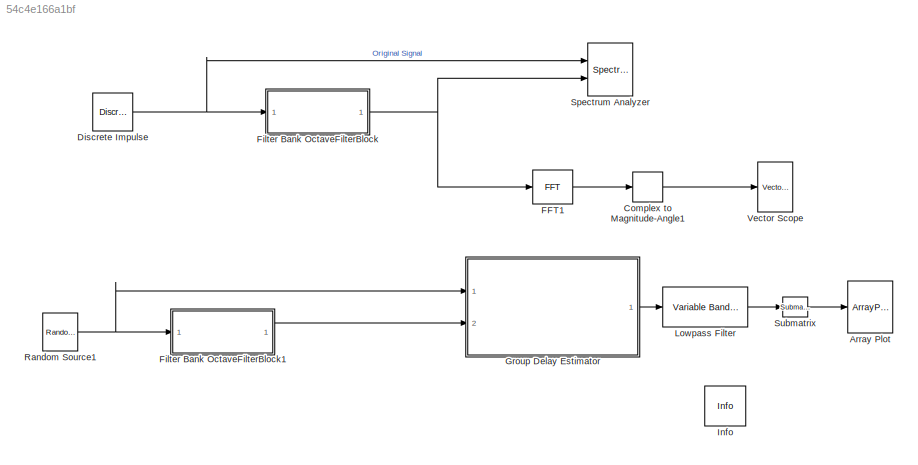
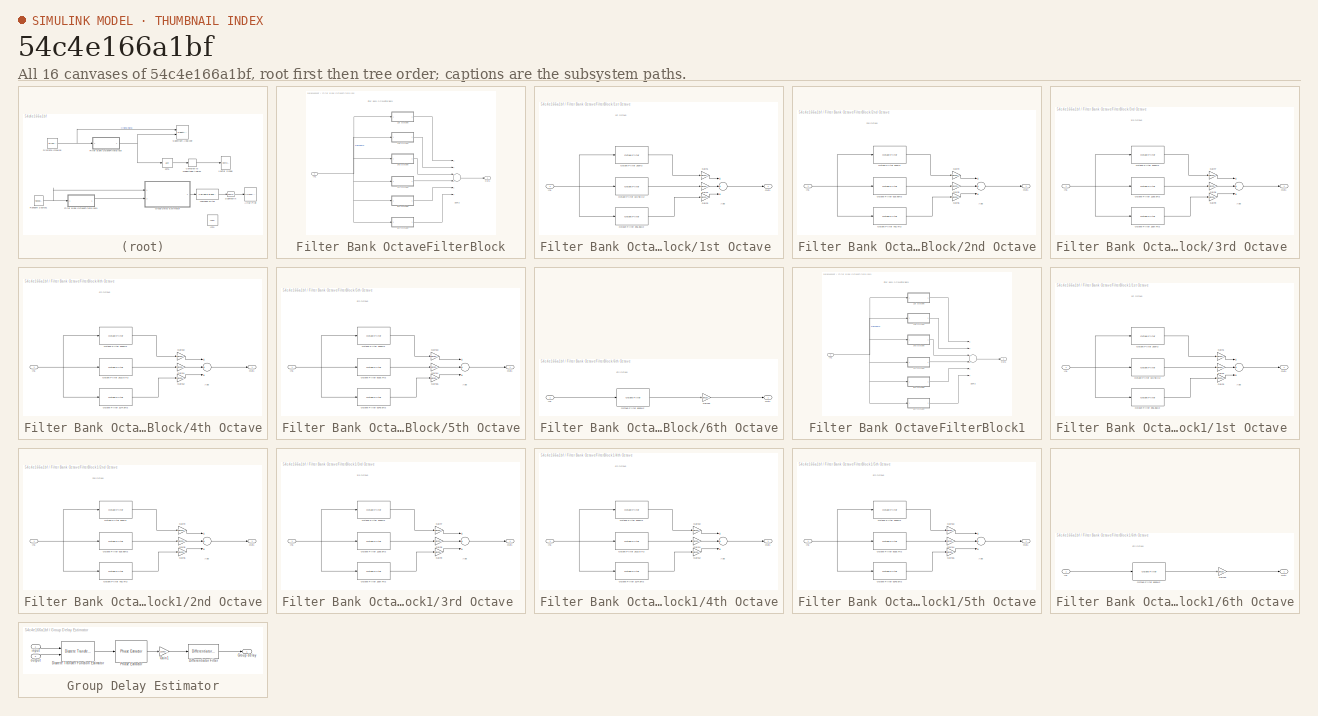
[diagram: thumbnail index - all 16 canvases of the model, root first then tree order]
MODEL slx_54c4e166a1bf
KIND model
CONFIG AbsTol = auto
CONFIG EnableMultiTasking = off
CONFIG FixedStep = auto
CONFIG MaxStep = auto
CONFIG MinStep = auto
CONFIG RelTol = 1e-3
CONFIG SampleTimeConstraint = Unconstrained
CONFIG Solver = FixedStepDiscrete
CONFIG SolverName = FixedStepDiscrete
CONFIG StartTime = 0.0
CONFIG StopTime = 0.5
BLOCK [ArrayPlot] Array Plot
  Ports = [1]
  ScopeSpecificationString = dsp.scopes.ArrayPlotBlockSpecification('CurrentConfiguration', extmgr.ConfigurationSet(extmgr.Configuration('Core','General UI',true),extmgr.Configuration('Core','Source UI',true),extmgr.Configuration('Sources','WiredSimulink',true),extmgr.Configuration('Sources','File',false),extmgr.Configuration('Sources','SPTool',false),extmgr.Configuration('Sources','SimulinkEvent',false),extmgr.Configuration(...<+3064ch>
BLOCK [ComplexToMagnitudeAngle] Complex to Magnitude-Angle1
  Output = Magnitude
  Ports = [1, 1]
BLOCK [Reference] Discrete Impulse  REF=dspsrcs4/Discrete 
Impulse
  Ports = [0, 1]
  SourceBlock = dspsrcs4/Discrete \nImpulse
  SourceProductBaseCode = DS
  SourceProductName = DSP System Toolbox
  SourceType = Discrete Impulse
BLOCK [Reference] FFT1  REF=dspxfrm3/FFT
  Ports = [1, 1]
  SourceBlock = dspxfrm3/FFT
  SourceProductBaseCode = DS
  SourceProductName = DSP System Toolbox
  SourceType = FFT
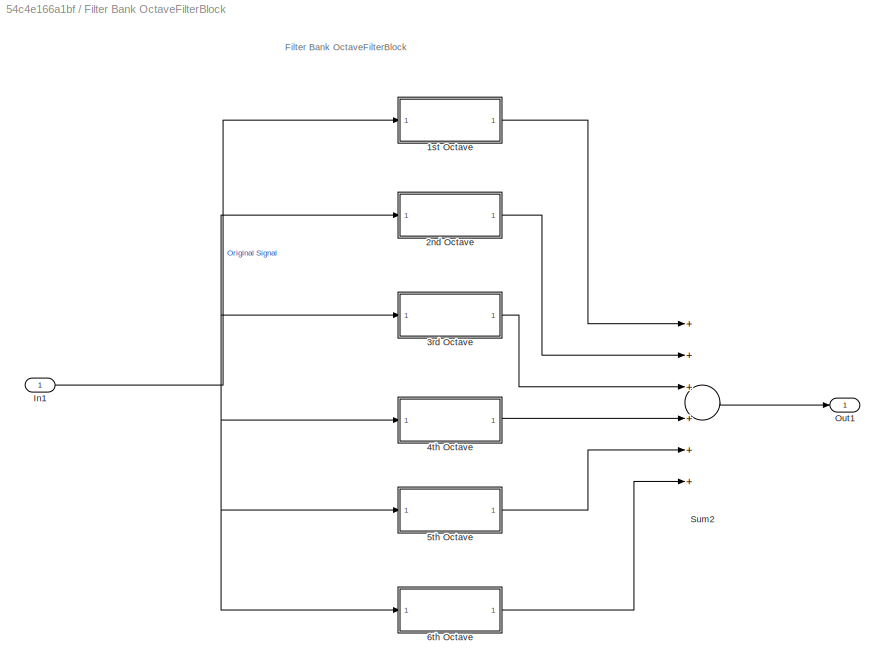
BLOCK [SubSystem] Filter Bank OctaveFilterBlock
  Ports = [1, 1]
  RequestExecContextInheritance = off
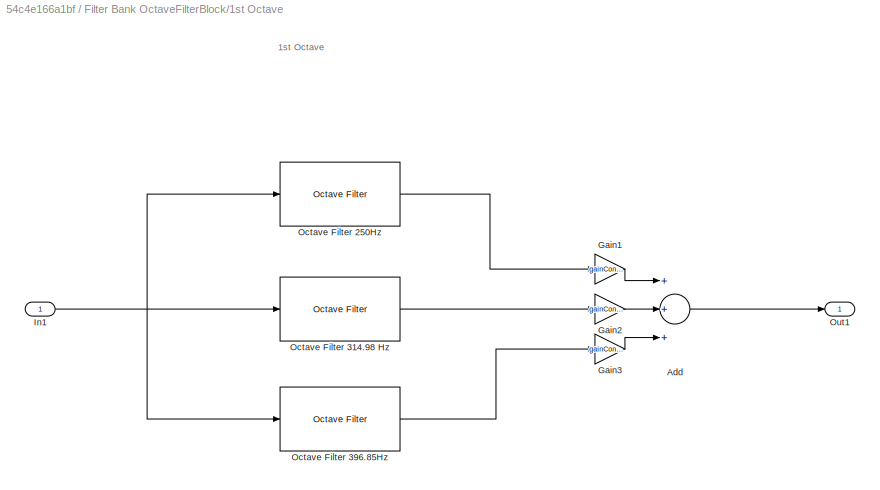
BLOCK [SubSystem] Filter Bank OctaveFilterBlock/1st Octave 
  Ports = [1, 1]
  RequestExecContextInheritance = off
BLOCK [Sum] Filter Bank OctaveFilterBlock/1st Octave /Add
  InputSameDT = off
  Inputs = +++
  OutDataTypeStr = Inherit: Inherit via internal rule
  Ports = [3, 1]
  SaturateOnIntegerOverflow = off
BLOCK [Gain] Filter Bank OctaveFilterBlock/1st Octave /Gain1
  Gain = gainConsts(1)
  OutDataTypeStr = Inherit: Inherit via internal rule
  ParamDataTypeStr = Inherit: Inherit via internal rule
  SaturateOnIntegerOverflow = off
BLOCK [Gain] Filter Bank OctaveFilterBlock/1st Octave /Gain2
  Gain = gainConsts(2)
  OutDataTypeStr = Inherit: Inherit via internal rule
  ParamDataTypeStr = Inherit: Inherit via internal rule
  SaturateOnIntegerOverflow = off
BLOCK [Gain] Filter Bank OctaveFilterBlock/1st Octave /Gain3
  Gain = gainConsts(3)
  OutDataTypeStr = Inherit: Inherit via internal rule
  ParamDataTypeStr = Inherit: Inherit via internal rule
  SaturateOnIntegerOverflow = off
BLOCK [Inport] Filter Bank OctaveFilterBlock/1st Octave /In1
  IconDisplay = Port number
BLOCK [Reference] Filter Bank OctaveFilterBlock/1st Octave /Octave Filter 250Hz   REF=audiofilters/Octave Filter
  Ports = [1, 1]
  SourceBlock = audiofilters/Octave Filter
  SourceProductBaseCode = AU
  SourceProductName = Audio System Toolbox
  SourceType = audio.simulink.OctaveFilter
BLOCK [Reference] Filter Bank OctaveFilterBlock/1st Octave /Octave Filter 314.98 Hz   REF=audiofilters/Octave Filter
  Ports = [1, 1]
  SourceBlock = audiofilters/Octave Filter
  SourceProductBaseCode = AU
  SourceProductName = Audio System Toolbox
  SourceType = audio.simulink.OctaveFilter
BLOCK [Reference] Filter Bank OctaveFilterBlock/1st Octave /Octave Filter 396.85Hz   REF=audiofilters/Octave Filter
  Ports = [1, 1]
  SourceBlock = audiofilters/Octave Filter
  SourceProductBaseCode = AU
  SourceProductName = Audio System Toolbox
  SourceType = audio.simulink.OctaveFilter
BLOCK [Outport] Filter Bank OctaveFilterBlock/1st Octave /Out1
  IconDisplay = Port number
BLOCK [SubSystem] Filter Bank OctaveFilterBlock/2nd Octave
  Ports = [1, 1]
  RequestExecContextInheritance = off
BLOCK [Sum] Filter Bank OctaveFilterBlock/2nd Octave/Add
  InputSameDT = off
  Inputs = +++
  OutDataTypeStr = Inherit: Inherit via internal rule
  Ports = [3, 1]
  SaturateOnIntegerOverflow = off
BLOCK [Gain] Filter Bank OctaveFilterBlock/2nd Octave/Gain4
  Gain = gainConsts(4)
  OutDataTypeStr = Inherit: Inherit via internal rule
  ParamDataTypeStr = Inherit: Inherit via internal rule
  SaturateOnIntegerOverflow = off
BLOCK [Gain] Filter Bank OctaveFilterBlock/2nd Octave/Gain5
  Gain = gainConsts(5)
  OutDataTypeStr = Inherit: Inherit via internal rule
  ParamDataTypeStr = Inherit: Inherit via internal rule
  SaturateOnIntegerOverflow = off
BLOCK [Gain] Filter Bank OctaveFilterBlock/2nd Octave/Gain6
  Gain = gainConsts(6)
  OutDataTypeStr = Inherit: Inherit via internal rule
  ParamDataTypeStr = Inherit: Inherit via internal rule
  SaturateOnIntegerOverflow = off
BLOCK [Inport] Filter Bank OctaveFilterBlock/2nd Octave/In1
  IconDisplay = Port number
BLOCK [Reference] Filter Bank OctaveFilterBlock/2nd Octave/Octave Filter 500Hz   REF=audiofilters/Octave Filter
  Ports = [1, 1]
  SourceBlock = audiofilters/Octave Filter
  SourceProductBaseCode = AU
  SourceProductName = Audio System Toolbox
  SourceType = audio.simulink.OctaveFilter
BLOCK [Reference] Filter Bank OctaveFilterBlock/2nd Octave/Octave Filter 629.96Hz   REF=audiofilters/Octave Filter
  Ports = [1, 1]
  SourceBlock = audiofilters/Octave Filter
  SourceProductBaseCode = AU
  SourceProductName = Audio System Toolbox
  SourceType = audio.simulink.OctaveFilter
BLOCK [Reference] Filter Bank OctaveFilterBlock/2nd Octave/Octave Filter 793.7Hz   REF=audiofilters/Octave Filter
  Ports = [1, 1]
  SourceBlock = audiofilters/Octave Filter
  SourceProductBaseCode = AU
  SourceProductName = Audio System Toolbox
  SourceType = audio.simulink.OctaveFilter
BLOCK [Outport] Filter Bank OctaveFilterBlock/2nd Octave/Out1
  IconDisplay = Port number
BLOCK [SubSystem] Filter Bank OctaveFilterBlock/3rd Octave 
  Ports = [1, 1]
  RequestExecContextInheritance = off
BLOCK [Sum] Filter Bank OctaveFilterBlock/3rd Octave /Add
  InputSameDT = off
  Inputs = +++
  OutDataTypeStr = Inherit: Inherit via internal rule
  Ports = [3, 1]
  SaturateOnIntegerOverflow = off
BLOCK [Gain] Filter Bank OctaveFilterBlock/3rd Octave /Gain7
  Gain = gainConsts(7)
  OutDataTypeStr = Inherit: Inherit via internal rule
  ParamDataTypeStr = Inherit: Inherit via internal rule
  SaturateOnIntegerOverflow = off
BLOCK [Gain] Filter Bank OctaveFilterBlock/3rd Octave /Gain8
  Gain = gainConsts(8)
  OutDataTypeStr = Inherit: Inherit via internal rule
  ParamDataTypeStr = Inherit: Inherit via internal rule
  SaturateOnIntegerOverflow = off
BLOCK [Gain] Filter Bank OctaveFilterBlock/3rd Octave /Gain9
  Gain = gainConsts(9)
  OutDataTypeStr = Inherit: Inherit via internal rule
  ParamDataTypeStr = Inherit: Inherit via internal rule
  SaturateOnIntegerOverflow = off
BLOCK [Inport] Filter Bank OctaveFilterBlock/3rd Octave /In1
  IconDisplay = Port number
BLOCK [Reference] Filter Bank OctaveFilterBlock/3rd Octave /Octave Filter 1000Hz   REF=audiofilters/Octave Filter
  Ports = [1, 1]
  SourceBlock = audiofilters/Octave Filter
  SourceProductBaseCode = AU
  SourceProductName = Audio System Toolbox
  SourceType = audio.simulink.OctaveFilter
BLOCK [Reference] Filter Bank OctaveFilterBlock/3rd Octave /Octave Filter 1259.9Hz   REF=audiofilters/Octave Filter
  Ports = [1, 1]
  SourceBlock = audiofilters/Octave Filter
  SourceProductBaseCode = AU
  SourceProductName = Audio System Toolbox
  SourceType = audio.simulink.OctaveFilter
BLOCK [Reference] Filter Bank OctaveFilterBlock/3rd Octave /Octave Filter 1587.4Hz   REF=audiofilters/Octave Filter
  Ports = [1, 1]
  SourceBlock = audiofilters/Octave Filter
  SourceProductBaseCode = AU
  SourceProductName = Audio System Toolbox
  SourceType = audio.simulink.OctaveFilter
BLOCK [Outport] Filter Bank OctaveFilterBlock/3rd Octave /Out1
  IconDisplay = Port number
BLOCK [SubSystem] Filter Bank OctaveFilterBlock/4th Octave
  Ports = [1, 1]
  RequestExecContextInheritance = off
BLOCK [Sum] Filter Bank OctaveFilterBlock/4th Octave/Add
  InputSameDT = off
  Inputs = +++
  OutDataTypeStr = Inherit: Inherit via internal rule
  Ports = [3, 1]
  SaturateOnIntegerOverflow = off
BLOCK [Gain] Filter Bank OctaveFilterBlock/4th Octave/Gain10
  Gain = gainConsts(10)
  OutDataTypeStr = Inherit: Inherit via internal rule
  ParamDataTypeStr = Inherit: Inherit via internal rule
  SaturateOnIntegerOverflow = off
BLOCK [Gain] Filter Bank OctaveFilterBlock/4th Octave/Gain11
  Gain = gainConsts(11)
  OutDataTypeStr = Inherit: Inherit via internal rule
  ParamDataTypeStr = Inherit: Inherit via internal rule
  SaturateOnIntegerOverflow = off
BLOCK [Gain] Filter Bank OctaveFilterBlock/4th Octave/Gain12
  Gain = gainConsts(12)
  OutDataTypeStr = Inherit: Inherit via internal rule
  ParamDataTypeStr = Inherit: Inherit via internal rule
  SaturateOnIntegerOverflow = off
BLOCK [Inport] Filter Bank OctaveFilterBlock/4th Octave/In1
  IconDisplay = Port number
BLOCK [Reference] Filter Bank OctaveFilterBlock/4th Octave/Octave Filter 2000Hz   REF=audiofilters/Octave Filter
  Ports = [1, 1]
  SourceBlock = audiofilters/Octave Filter
  SourceProductBaseCode = AU
  SourceProductName = Audio System Toolbox
  SourceType = audio.simulink.OctaveFilter
BLOCK [Reference] Filter Bank OctaveFilterBlock/4th Octave/Octave Filter 2519.8 Hz   REF=audiofilters/Octave Filter
  Ports = [1, 1]
  SourceBlock = audiofilters/Octave Filter
  SourceProductBaseCode = AU
  SourceProductName = Audio System Toolbox
  SourceType = audio.simulink.OctaveFilter
BLOCK [Reference] Filter Bank OctaveFilterBlock/4th Octave/Octave Filter 3174.8Hz   REF=audiofilters/Octave Filter
  Ports = [1, 1]
  SourceBlock = audiofilters/Octave Filter
  SourceProductBaseCode = AU
  SourceProductName = Audio System Toolbox
  SourceType = audio.simulink.OctaveFilter
BLOCK [Outport] Filter Bank OctaveFilterBlock/4th Octave/Out1
  IconDisplay = Port number
BLOCK [SubSystem] Filter Bank OctaveFilterBlock/5th Octave
  Ports = [1, 1]
  RequestExecContextInheritance = off
BLOCK [Sum] Filter Bank OctaveFilterBlock/5th Octave/Add
  InputSameDT = off
  Inputs = +++
  OutDataTypeStr = Inherit: Inherit via internal rule
  Ports = [3, 1]
  SaturateOnIntegerOverflow = off
BLOCK [Gain] Filter Bank OctaveFilterBlock/5th Octave/Gain13 
  Gain = gainConsts(13)
  OutDataTypeStr = Inherit: Inherit via internal rule
  ParamDataTypeStr = Inherit: Inherit via internal rule
  SaturateOnIntegerOverflow = off
BLOCK [Gain] Filter Bank OctaveFilterBlock/5th Octave/Gain14
  Gain = gainConsts(14)
  OutDataTypeStr = Inherit: Inherit via internal rule
  ParamDataTypeStr = Inherit: Inherit via internal rule
  SaturateOnIntegerOverflow = off
BLOCK [Gain] Filter Bank OctaveFilterBlock/5th Octave/Gain15
  Gain = gainConsts(15)
  OutDataTypeStr = Inherit: Inherit via internal rule
  ParamDataTypeStr = Inherit: Inherit via internal rule
  SaturateOnIntegerOverflow = off
BLOCK [Inport] Filter Bank OctaveFilterBlock/5th Octave/In1
  IconDisplay = Port number
BLOCK [Reference] Filter Bank OctaveFilterBlock/5th Octave/Octave Filter 4000Hz   REF=audiofilters/Octave Filter
  Ports = [1, 1]
  SourceBlock = audiofilters/Octave Filter
  SourceProductBaseCode = AU
  SourceProductName = Audio System Toolbox
  SourceType = audio.simulink.OctaveFilter
BLOCK [Reference] Filter Bank OctaveFilterBlock/5th Octave/Octave Filter 5039.7Hz   REF=audiofilters/Octave Filter
  Ports = [1, 1]
  SourceBlock = audiofilters/Octave Filter
  SourceProductBaseCode = AU
  SourceProductName = Audio System Toolbox
  SourceType = audio.simulink.OctaveFilter
BLOCK [Reference] Filter Bank OctaveFilterBlock/5th Octave/Octave Filter 6349.6Hz   REF=audiofilters/Octave Filter
  Ports = [1, 1]
  SourceBlock = audiofilters/Octave Filter
  SourceProductBaseCode = AU
  SourceProductName = Audio System Toolbox
  SourceType = audio.simulink.OctaveFilter
BLOCK [Outport] Filter Bank OctaveFilterBlock/5th Octave/Out1
  IconDisplay = Port number
BLOCK [SubSystem] Filter Bank OctaveFilterBlock/6th Octave
  Ports = [1, 1]
  RequestExecContextInheritance = off
BLOCK [Gain] Filter Bank OctaveFilterBlock/6th Octave/Gain16
  Gain = gainConsts(16)
  OutDataTypeStr = Inherit: Inherit via internal rule
  ParamDataTypeStr = Inherit: Inherit via internal rule
  SaturateOnIntegerOverflow = off
BLOCK [Inport] Filter Bank OctaveFilterBlock/6th Octave/In1
  IconDisplay = Port number
BLOCK [Reference] Filter Bank OctaveFilterBlock/6th Octave/Octave Filter 8000Hz   REF=audiofilters/Octave Filter
  Ports = [1, 1]
  SourceBlock = audiofilters/Octave Filter
  SourceProductBaseCode = AU
  SourceProductName = Audio System Toolbox
  SourceType = audio.simulink.OctaveFilter
BLOCK [Outport] Filter Bank OctaveFilterBlock/6th Octave/Out1
  IconDisplay = Port number
BLOCK [Inport] Filter Bank OctaveFilterBlock/In1
  IconDisplay = Port number
BLOCK [Outport] Filter Bank OctaveFilterBlock/Out1
  IconDisplay = Port number
BLOCK [Sum] Filter Bank OctaveFilterBlock/Sum2
  InputSameDT = off
  Inputs = ++++++
  OutDataTypeStr = Inherit: Inherit via internal rule
  Ports = [6, 1]
  SaturateOnIntegerOverflow = off
BLOCK [SubSystem] Filter Bank OctaveFilterBlock1
  Ports = [1, 1]
  RequestExecContextInheritance = off
BLOCK [SubSystem] Filter Bank OctaveFilterBlock1/1st Octave 
  Ports = [1, 1]
  RequestExecContextInheritance = off
BLOCK [Sum] Filter Bank OctaveFilterBlock1/1st Octave /Add
  InputSameDT = off
  Inputs = +++
  OutDataTypeStr = Inherit: Inherit via internal rule
  Ports = [3, 1]
  SaturateOnIntegerOverflow = off
BLOCK [Gain] Filter Bank OctaveFilterBlock1/1st Octave /Gain1
  Gain = gainConsts(1)
  OutDataTypeStr = Inherit: Inherit via internal rule
  ParamDataTypeStr = Inherit: Inherit via internal rule
  SaturateOnIntegerOverflow = off
BLOCK [Gain] Filter Bank OctaveFilterBlock1/1st Octave /Gain2
  Gain = gainConsts(2)
  OutDataTypeStr = Inherit: Inherit via internal rule
  ParamDataTypeStr = Inherit: Inherit via internal rule
  SaturateOnIntegerOverflow = off
BLOCK [Gain] Filter Bank OctaveFilterBlock1/1st Octave /Gain3
  Gain = gainConsts(3)
  OutDataTypeStr = Inherit: Inherit via internal rule
  ParamDataTypeStr = Inherit: Inherit via internal rule
  SaturateOnIntegerOverflow = off
BLOCK [Inport] Filter Bank OctaveFilterBlock1/1st Octave /In1
  IconDisplay = Port number
BLOCK [Reference] Filter Bank OctaveFilterBlock1/1st Octave /Octave Filter 250Hz   REF=audiofilters/Octave Filter
  Ports = [1, 1]
  SourceBlock = audiofilters/Octave Filter
  SourceProductBaseCode = AU
  SourceProductName = Audio System Toolbox
  SourceType = audio.simulink.OctaveFilter
BLOCK [Reference] Filter Bank OctaveFilterBlock1/1st Octave /Octave Filter 314.98 Hz   REF=audiofilters/Octave Filter
  Ports = [1, 1]
  SourceBlock = audiofilters/Octave Filter
  SourceProductBaseCode = AU
  SourceProductName = Audio System Toolbox
  SourceType = audio.simulink.OctaveFilter
BLOCK [Reference] Filter Bank OctaveFilterBlock1/1st Octave /Octave Filter 396.85Hz   REF=audiofilters/Octave Filter
  Ports = [1, 1]
  SourceBlock = audiofilters/Octave Filter
  SourceProductBaseCode = AU
  SourceProductName = Audio System Toolbox
  SourceType = audio.simulink.OctaveFilter
BLOCK [Outport] Filter Bank OctaveFilterBlock1/1st Octave /Out1
  IconDisplay = Port number
BLOCK [SubSystem] Filter Bank OctaveFilterBlock1/2nd Octave
  Ports = [1, 1]
  RequestExecContextInheritance = off
BLOCK [Sum] Filter Bank OctaveFilterBlock1/2nd Octave/Add
  InputSameDT = off
  Inputs = +++
  OutDataTypeStr = Inherit: Inherit via internal rule
  Ports = [3, 1]
  SaturateOnIntegerOverflow = off
BLOCK [Gain] Filter Bank OctaveFilterBlock1/2nd Octave/Gain4
  Gain = gainConsts(4)
  OutDataTypeStr = Inherit: Inherit via internal rule
  ParamDataTypeStr = Inherit: Inherit via internal rule
  SaturateOnIntegerOverflow = off
BLOCK [Gain] Filter Bank OctaveFilterBlock1/2nd Octave/Gain5
  Gain = gainConsts(5)
  OutDataTypeStr = Inherit: Inherit via internal rule
  ParamDataTypeStr = Inherit: Inherit via internal rule
  SaturateOnIntegerOverflow = off
BLOCK [Gain] Filter Bank OctaveFilterBlock1/2nd Octave/Gain6
  Gain = gainConsts(6)
  OutDataTypeStr = Inherit: Inherit via internal rule
  ParamDataTypeStr = Inherit: Inherit via internal rule
  SaturateOnIntegerOverflow = off
BLOCK [Inport] Filter Bank OctaveFilterBlock1/2nd Octave/In1
  IconDisplay = Port number
BLOCK [Reference] Filter Bank OctaveFilterBlock1/2nd Octave/Octave Filter 500Hz   REF=audiofilters/Octave Filter
  Ports = [1, 1]
  SourceBlock = audiofilters/Octave Filter
  SourceProductBaseCode = AU
  SourceProductName = Audio System Toolbox
  SourceType = audio.simulink.OctaveFilter
BLOCK [Reference] Filter Bank OctaveFilterBlock1/2nd Octave/Octave Filter 629.96Hz   REF=audiofilters/Octave Filter
  Ports = [1, 1]
  SourceBlock = audiofilters/Octave Filter
  SourceProductBaseCode = AU
  SourceProductName = Audio System Toolbox
  SourceType = audio.simulink.OctaveFilter
BLOCK [Reference] Filter Bank OctaveFilterBlock1/2nd Octave/Octave Filter 793.7Hz   REF=audiofilters/Octave Filter
  Ports = [1, 1]
  SourceBlock = audiofilters/Octave Filter
  SourceProductBaseCode = AU
  SourceProductName = Audio System Toolbox
  SourceType = audio.simulink.OctaveFilter
BLOCK [Outport] Filter Bank OctaveFilterBlock1/2nd Octave/Out1
  IconDisplay = Port number
BLOCK [SubSystem] Filter Bank OctaveFilterBlock1/3rd Octave 
  Ports = [1, 1]
  RequestExecContextInheritance = off
BLOCK [Sum] Filter Bank OctaveFilterBlock1/3rd Octave /Add
  InputSameDT = off
  Inputs = +++
  OutDataTypeStr = Inherit: Inherit via internal rule
  Ports = [3, 1]
  SaturateOnIntegerOverflow = off
BLOCK [Gain] Filter Bank OctaveFilterBlock1/3rd Octave /Gain7
  Gain = gainConsts(7)
  OutDataTypeStr = Inherit: Inherit via internal rule
  ParamDataTypeStr = Inherit: Inherit via internal rule
  SaturateOnIntegerOverflow = off
BLOCK [Gain] Filter Bank OctaveFilterBlock1/3rd Octave /Gain8
  Gain = gainConsts(8)
  OutDataTypeStr = Inherit: Inherit via internal rule
  ParamDataTypeStr = Inherit: Inherit via internal rule
  SaturateOnIntegerOverflow = off
BLOCK [Gain] Filter Bank OctaveFilterBlock1/3rd Octave /Gain9
  Gain = gainConsts(9)
  OutDataTypeStr = Inherit: Inherit via internal rule
  ParamDataTypeStr = Inherit: Inherit via internal rule
  SaturateOnIntegerOverflow = off
BLOCK [Inport] Filter Bank OctaveFilterBlock1/3rd Octave /In1
  IconDisplay = Port number
BLOCK [Reference] Filter Bank OctaveFilterBlock1/3rd Octave /Octave Filter 1000Hz   REF=audiofilters/Octave Filter
  Ports = [1, 1]
  SourceBlock = audiofilters/Octave Filter
  SourceProductBaseCode = AU
  SourceProductName = Audio System Toolbox
  SourceType = audio.simulink.OctaveFilter
BLOCK [Reference] Filter Bank OctaveFilterBlock1/3rd Octave /Octave Filter 1259.9Hz   REF=audiofilters/Octave Filter
  Ports = [1, 1]
  SourceBlock = audiofilters/Octave Filter
  SourceProductBaseCode = AU
  SourceProductName = Audio System Toolbox
  SourceType = audio.simulink.OctaveFilter
BLOCK [Reference] Filter Bank OctaveFilterBlock1/3rd Octave /Octave Filter 1587.4Hz   REF=audiofilters/Octave Filter
  Ports = [1, 1]
  SourceBlock = audiofilters/Octave Filter
  SourceProductBaseCode = AU
  SourceProductName = Audio System Toolbox
  SourceType = audio.simulink.OctaveFilter
BLOCK [Outport] Filter Bank OctaveFilterBlock1/3rd Octave /Out1
  IconDisplay = Port number
BLOCK [SubSystem] Filter Bank OctaveFilterBlock1/4th Octave
  Ports = [1, 1]
  RequestExecContextInheritance = off
BLOCK [Sum] Filter Bank OctaveFilterBlock1/4th Octave/Add
  InputSameDT = off
  Inputs = +++
  OutDataTypeStr = Inherit: Inherit via internal rule
  Ports = [3, 1]
  SaturateOnIntegerOverflow = off
BLOCK [Gain] Filter Bank OctaveFilterBlock1/4th Octave/Gain10
  Gain = gainConsts(10)
  OutDataTypeStr = Inherit: Inherit via internal rule
  ParamDataTypeStr = Inherit: Inherit via internal rule
  SaturateOnIntegerOverflow = off
BLOCK [Gain] Filter Bank OctaveFilterBlock1/4th Octave/Gain11
  Gain = gainConsts(11)
  OutDataTypeStr = Inherit: Inherit via internal rule
  ParamDataTypeStr = Inherit: Inherit via internal rule
  SaturateOnIntegerOverflow = off
BLOCK [Gain] Filter Bank OctaveFilterBlock1/4th Octave/Gain12
  Gain = gainConsts(12)
  OutDataTypeStr = Inherit: Inherit via internal rule
  ParamDataTypeStr = Inherit: Inherit via internal rule
  SaturateOnIntegerOverflow = off
BLOCK [Inport] Filter Bank OctaveFilterBlock1/4th Octave/In1
  IconDisplay = Port number
BLOCK [Reference] Filter Bank OctaveFilterBlock1/4th Octave/Octave Filter 2000Hz   REF=audiofilters/Octave Filter
  Ports = [1, 1]
  SourceBlock = audiofilters/Octave Filter
  SourceProductBaseCode = AU
  SourceProductName = Audio System Toolbox
  SourceType = audio.simulink.OctaveFilter
BLOCK [Reference] Filter Bank OctaveFilterBlock1/4th Octave/Octave Filter 2519.8 Hz   REF=audiofilters/Octave Filter
  Ports = [1, 1]
  SourceBlock = audiofilters/Octave Filter
  SourceProductBaseCode = AU
  SourceProductName = Audio System Toolbox
  SourceType = audio.simulink.OctaveFilter
BLOCK [Reference] Filter Bank OctaveFilterBlock1/4th Octave/Octave Filter 3174.8Hz   REF=audiofilters/Octave Filter
  Ports = [1, 1]
  SourceBlock = audiofilters/Octave Filter
  SourceProductBaseCode = AU
  SourceProductName = Audio System Toolbox
  SourceType = audio.simulink.OctaveFilter
BLOCK [Outport] Filter Bank OctaveFilterBlock1/4th Octave/Out1
  IconDisplay = Port number
BLOCK [SubSystem] Filter Bank OctaveFilterBlock1/5th Octave
  Ports = [1, 1]
  RequestExecContextInheritance = off
BLOCK [Sum] Filter Bank OctaveFilterBlock1/5th Octave/Add
  InputSameDT = off
  Inputs = +++
  OutDataTypeStr = Inherit: Inherit via internal rule
  Ports = [3, 1]
  SaturateOnIntegerOverflow = off
BLOCK [Gain] Filter Bank OctaveFilterBlock1/5th Octave/Gain13 
  Gain = gainConsts(13)
  OutDataTypeStr = Inherit: Inherit via internal rule
  ParamDataTypeStr = Inherit: Inherit via internal rule
  SaturateOnIntegerOverflow = off
BLOCK [Gain] Filter Bank OctaveFilterBlock1/5th Octave/Gain14
  Gain = gainConsts(14)
  OutDataTypeStr = Inherit: Inherit via internal rule
  ParamDataTypeStr = Inherit: Inherit via internal rule
  SaturateOnIntegerOverflow = off
BLOCK [Gain] Filter Bank OctaveFilterBlock1/5th Octave/Gain15
  Gain = gainConsts(15)
  OutDataTypeStr = Inherit: Inherit via internal rule
  ParamDataTypeStr = Inherit: Inherit via internal rule
  SaturateOnIntegerOverflow = off
BLOCK [Inport] Filter Bank OctaveFilterBlock1/5th Octave/In1
  IconDisplay = Port number
BLOCK [Reference] Filter Bank OctaveFilterBlock1/5th Octave/Octave Filter 4000Hz   REF=audiofilters/Octave Filter
  Ports = [1, 1]
  SourceBlock = audiofilters/Octave Filter
  SourceProductBaseCode = AU
  SourceProductName = Audio System Toolbox
  SourceType = audio.simulink.OctaveFilter
BLOCK [Reference] Filter Bank OctaveFilterBlock1/5th Octave/Octave Filter 5039.7Hz   REF=audiofilters/Octave Filter
  Ports = [1, 1]
  SourceBlock = audiofilters/Octave Filter
  SourceProductBaseCode = AU
  SourceProductName = Audio System Toolbox
  SourceType = audio.simulink.OctaveFilter
BLOCK [Reference] Filter Bank OctaveFilterBlock1/5th Octave/Octave Filter 6349.6Hz   REF=audiofilters/Octave Filter
  Ports = [1, 1]
  SourceBlock = audiofilters/Octave Filter
  SourceProductBaseCode = AU
  SourceProductName = Audio System Toolbox
  SourceType = audio.simulink.OctaveFilter
BLOCK [Outport] Filter Bank OctaveFilterBlock1/5th Octave/Out1
  IconDisplay = Port number
BLOCK [SubSystem] Filter Bank OctaveFilterBlock1/6th Octave
  Ports = [1, 1]
  RequestExecContextInheritance = off
BLOCK [Gain] Filter Bank OctaveFilterBlock1/6th Octave/Gain16
  Gain = gainConsts(16)
  OutDataTypeStr = Inherit: Inherit via internal rule
  ParamDataTypeStr = Inherit: Inherit via internal rule
  SaturateOnIntegerOverflow = off
BLOCK [Inport] Filter Bank OctaveFilterBlock1/6th Octave/In1
  IconDisplay = Port number
BLOCK [Reference] Filter Bank OctaveFilterBlock1/6th Octave/Octave Filter 8000Hz   REF=audiofilters/Octave Filter
  Ports = [1, 1]
  SourceBlock = audiofilters/Octave Filter
  SourceProductBaseCode = AU
  SourceProductName = Audio System Toolbox
  SourceType = audio.simulink.OctaveFilter
BLOCK [Outport] Filter Bank OctaveFilterBlock1/6th Octave/Out1
  IconDisplay = Port number
BLOCK [Inport] Filter Bank OctaveFilterBlock1/In1
  IconDisplay = Port number
BLOCK [Outport] Filter Bank OctaveFilterBlock1/Out1
  IconDisplay = Port number
BLOCK [Sum] Filter Bank OctaveFilterBlock1/Sum2
  InputSameDT = off
  Inputs = ++++++
  OutDataTypeStr = Inherit: Inherit via internal rule
  Ports = [6, 1]
  SaturateOnIntegerOverflow = off
BLOCK [SubSystem] Group Delay Estimator
  Ports = [2, 1]
  RequestExecContextInheritance = off
BLOCK [Reference] Group Delay Estimator/Differentiator Filter  REF=dspfdesign/Differentiator Filter
  Ports = [1, 1]
  SourceBlock = dspfdesign/Differentiator Filter
  SourceProductBaseCode = DS
  SourceProductName = DSP System Toolbox
  SourceType = dsp.Differentiator
BLOCK [Reference] Group Delay Estimator/Discrete Transfer Function Estimator  REF=dspspect3/Discrete
Transfer Function
Estimator
  Ports = [2, 1]
  SourceBlock = dspspect3/Discrete\nTransfer Function\nEstimator
  SourceProductBaseCode = DS
  SourceProductName = DSP System Toolbox
  SourceType = Discrete Transfer Function Estimator
BLOCK [Gain] Group Delay Estimator/Gain1
  Gain = -22050/257
  OutDataTypeStr = Inherit: Inherit via internal rule
  ParamDataTypeStr = Inherit: Inherit via internal rule
  SaturateOnIntegerOverflow = off
BLOCK [Outport] Group Delay Estimator/Group delay
  IconDisplay = Port number
BLOCK [Reference] Group Delay Estimator/Phase Extractor  REF=dspsigops/Phase Extractor
  Ports = [1, 1]
  SourceBlock = dspsigops/Phase Extractor
  SourceProductBaseCode = DS
  SourceProductName = DSP System Toolbox
  SourceType = dsp.PhaseExtractor
BLOCK [Inport] Group Delay Estimator/input
  IconDisplay = Port number
BLOCK [Inport] Group Delay Estimator/output
  IconDisplay = Port number
  Port = 2
BLOCK [Reference] Info  REF=dspmisc/Info
  Ports = []
  SourceBlock = dspmisc/Info
  SourceProductBaseCode = DS
  SourceProductName = DSP System Toolbox
  SourceType = Info
BLOCK [Reference] Lowpass Filter  REF=dspfdesign/Variable Bandwidth
FIR Filter
  Ports = [1, 1]
  SourceBlock = dspfdesign/Variable Bandwidth\nFIR Filter
  SourceProductBaseCode = DS
  SourceProductName = DSP System Toolbox
  SourceType = dsp.simulink.VariableBandwidthFIRFilter
BLOCK [Reference] Random Source1  REF=dspsrcs4/Random
Source
  Ports = [0, 1]
  SourceBlock = dspsrcs4/Random\nSource
  SourceProductBaseCode = DS
  SourceProductName = DSP System Toolbox
  SourceType = Random Source
  UserDataPersistent = on
BLOCK [SpectrumAnalyzer] Spectrum Analyzer
  NumInputPorts = 2
  Ports = [2]
  ScopeSpecificationString = spbscopes.SpectrumAnalyzerBlockCfg('CurrentConfiguration', extmgr.ConfigurationSet(extmgr.Configuration('Core','General UI',true),extmgr.Configuration('Core','Source UI',true),extmgr.Configuration('Sources','WiredSimulink',true),extmgr.Configuration('Visuals','Spectrum',true,'AxesProperties',struct('Color',{[0 0 0],[0 0 0]},'XColor',{[0.686274509803922 0.686274509803922 0.686274509803922],[0.68627...<+2289ch>
BLOCK [Reference] Submatrix  REF=dspmtrx3/Submatrix
  Ports = [1, 1]
  SourceBlock = dspmtrx3/Submatrix
  SourceProductBaseCode = DS
  SourceProductName = DSP System Toolbox
  SourceType = Submatrix
BLOCK [Reference] Vector Scope  REF=dspobslib/Vector
Scope
  Ports = [1]
  SourceBlock = dspobslib/Vector\nScope
  SourceProductBaseCode = DS
  SourceProductName = DSP System Toolbox
  SourceType = Vector Scope
ANNOTATION Filter Bank OctaveFilterBlock: Filter Bank OctaveFilterBlock
ANNOTATION Filter Bank OctaveFilterBlock/1st Octave : 1st Octave
ANNOTATION Filter Bank OctaveFilterBlock/2nd Octave: 2nd Octave
ANNOTATION Filter Bank OctaveFilterBlock/3rd Octave : 3rd Octave
ANNOTATION Filter Bank OctaveFilterBlock/4th Octave: 4th Octave
ANNOTATION Filter Bank OctaveFilterBlock/5th Octave: 5th Octave
ANNOTATION Filter Bank OctaveFilterBlock/6th Octave: 6th Octave
ANNOTATION Filter Bank OctaveFilterBlock1: Filter Bank OctaveFilterBlock
ANNOTATION Filter Bank OctaveFilterBlock1/1st Octave : 1st Octave
ANNOTATION Filter Bank OctaveFilterBlock1/2nd Octave: 2nd Octave
ANNOTATION Filter Bank OctaveFilterBlock1/3rd Octave : 3rd Octave
ANNOTATION Filter Bank OctaveFilterBlock1/4th Octave: 4th Octave
ANNOTATION Filter Bank OctaveFilterBlock1/5th Octave: 5th Octave
ANNOTATION Filter Bank OctaveFilterBlock1/6th Octave: 6th Octave
LINE Complex to Magnitude-Angle1:1 -> Vector Scope:1
NET Discrete Impulse:1 -> Filter Bank OctaveFilterBlock:1, Spectrum Analyzer:1
LINE FFT1:1 -> Complex to Magnitude-Angle1:1
LINE Filter Bank OctaveFilterBlock/1st Octave /Add:1 -> Filter Bank OctaveFilterBlock/1st Octave /Out1:1
LINE Filter Bank OctaveFilterBlock/1st Octave /Gain1:1 -> Filter Bank OctaveFilterBlock/1st Octave /Add:1
LINE Filter Bank OctaveFilterBlock/1st Octave /Gain2:1 -> Filter Bank OctaveFilterBlock/1st Octave /Add:2
LINE Filter Bank OctaveFilterBlock/1st Octave /Gain3:1 -> Filter Bank OctaveFilterBlock/1st Octave /Add:3
NET Filter Bank OctaveFilterBlock/1st Octave /In1:1 -> Filter Bank OctaveFilterBlock/1st Octave /Octave Filter 250Hz :1, Filter Bank OctaveFilterBlock/1st Octave /Octave Filter 314.98 Hz :1, Filter Bank OctaveFilterBlock/1st Octave /Octave Filter 396.85Hz :1
LINE Filter Bank OctaveFilterBlock/1st Octave /Octave Filter 250Hz :1 -> Filter Bank OctaveFilterBlock/1st Octave /Gain1:1
LINE Filter Bank OctaveFilterBlock/1st Octave /Octave Filter 314.98 Hz :1 -> Filter Bank OctaveFilterBlock/1st Octave /Gain2:1
LINE Filter Bank OctaveFilterBlock/1st Octave /Octave Filter 396.85Hz :1 -> Filter Bank OctaveFilterBlock/1st Octave /Gain3:1
LINE Filter Bank OctaveFilterBlock/1st Octave :1 -> Filter Bank OctaveFilterBlock/Sum2:1
LINE Filter Bank OctaveFilterBlock/2nd Octave/Add:1 -> Filter Bank OctaveFilterBlock/2nd Octave/Out1:1
LINE Filter Bank OctaveFilterBlock/2nd Octave/Gain4:1 -> Filter Bank OctaveFilterBlock/2nd Octave/Add:1
LINE Filter Bank OctaveFilterBlock/2nd Octave/Gain5:1 -> Filter Bank OctaveFilterBlock/2nd Octave/Add:2
LINE Filter Bank OctaveFilterBlock/2nd Octave/Gain6:1 -> Filter Bank OctaveFilterBlock/2nd Octave/Add:3
NET Filter Bank OctaveFilterBlock/2nd Octave/In1:1 -> Filter Bank OctaveFilterBlock/2nd Octave/Octave Filter 500Hz :1, Filter Bank OctaveFilterBlock/2nd Octave/Octave Filter 629.96Hz :1, Filter Bank OctaveFilterBlock/2nd Octave/Octave Filter 793.7Hz :1
LINE Filter Bank OctaveFilterBlock/2nd Octave/Octave Filter 500Hz :1 -> Filter Bank OctaveFilterBlock/2nd Octave/Gain4:1
LINE Filter Bank OctaveFilterBlock/2nd Octave/Octave Filter 629.96Hz :1 -> Filter Bank OctaveFilterBlock/2nd Octave/Gain5:1
LINE Filter Bank OctaveFilterBlock/2nd Octave/Octave Filter 793.7Hz :1 -> Filter Bank OctaveFilterBlock/2nd Octave/Gain6:1
LINE Filter Bank OctaveFilterBlock/2nd Octave:1 -> Filter Bank OctaveFilterBlock/Sum2:2
LINE Filter Bank OctaveFilterBlock/3rd Octave /Add:1 -> Filter Bank OctaveFilterBlock/3rd Octave /Out1:1
LINE Filter Bank OctaveFilterBlock/3rd Octave /Gain7:1 -> Filter Bank OctaveFilterBlock/3rd Octave /Add:1
LINE Filter Bank OctaveFilterBlock/3rd Octave /Gain8:1 -> Filter Bank OctaveFilterBlock/3rd Octave /Add:2
LINE Filter Bank OctaveFilterBlock/3rd Octave /Gain9:1 -> Filter Bank OctaveFilterBlock/3rd Octave /Add:3
NET Filter Bank OctaveFilterBlock/3rd Octave /In1:1 -> Filter Bank OctaveFilterBlock/3rd Octave /Octave Filter 1000Hz :1, Filter Bank OctaveFilterBlock/3rd Octave /Octave Filter 1259.9Hz :1, Filter Bank OctaveFilterBlock/3rd Octave /Octave Filter 1587.4Hz :1
LINE Filter Bank OctaveFilterBlock/3rd Octave /Octave Filter 1000Hz :1 -> Filter Bank OctaveFilterBlock/3rd Octave /Gain7:1
LINE Filter Bank OctaveFilterBlock/3rd Octave /Octave Filter 1259.9Hz :1 -> Filter Bank OctaveFilterBlock/3rd Octave /Gain8:1
LINE Filter Bank OctaveFilterBlock/3rd Octave /Octave Filter 1587.4Hz :1 -> Filter Bank OctaveFilterBlock/3rd Octave /Gain9:1
LINE Filter Bank OctaveFilterBlock/3rd Octave :1 -> Filter Bank OctaveFilterBlock/Sum2:3
LINE Filter Bank OctaveFilterBlock/4th Octave/Add:1 -> Filter Bank OctaveFilterBlock/4th Octave/Out1:1
LINE Filter Bank OctaveFilterBlock/4th Octave/Gain10:1 -> Filter Bank OctaveFilterBlock/4th Octave/Add:1
LINE Filter Bank OctaveFilterBlock/4th Octave/Gain11:1 -> Filter Bank OctaveFilterBlock/4th Octave/Add:2
LINE Filter Bank OctaveFilterBlock/4th Octave/Gain12:1 -> Filter Bank OctaveFilterBlock/4th Octave/Add:3
NET Filter Bank OctaveFilterBlock/4th Octave/In1:1 -> Filter Bank OctaveFilterBlock/4th Octave/Octave Filter 2000Hz :1, Filter Bank OctaveFilterBlock/4th Octave/Octave Filter 2519.8 Hz :1, Filter Bank OctaveFilterBlock/4th Octave/Octave Filter 3174.8Hz :1
LINE Filter Bank OctaveFilterBlock/4th Octave/Octave Filter 2000Hz :1 -> Filter Bank OctaveFilterBlock/4th Octave/Gain10:1
LINE Filter Bank OctaveFilterBlock/4th Octave/Octave Filter 2519.8 Hz :1 -> Filter Bank OctaveFilterBlock/4th Octave/Gain11:1
LINE Filter Bank OctaveFilterBlock/4th Octave/Octave Filter 3174.8Hz :1 -> Filter Bank OctaveFilterBlock/4th Octave/Gain12:1
LINE Filter Bank OctaveFilterBlock/4th Octave:1 -> Filter Bank OctaveFilterBlock/Sum2:4
LINE Filter Bank OctaveFilterBlock/5th Octave/Add:1 -> Filter Bank OctaveFilterBlock/5th Octave/Out1:1
LINE Filter Bank OctaveFilterBlock/5th Octave/Gain13 :1 -> Filter Bank OctaveFilterBlock/5th Octave/Add:1
LINE Filter Bank OctaveFilterBlock/5th Octave/Gain14:1 -> Filter Bank OctaveFilterBlock/5th Octave/Add:2
LINE Filter Bank OctaveFilterBlock/5th Octave/Gain15:1 -> Filter Bank OctaveFilterBlock/5th Octave/Add:3
NET Filter Bank OctaveFilterBlock/5th Octave/In1:1 -> Filter Bank OctaveFilterBlock/5th Octave/Octave Filter 4000Hz :1, Filter Bank OctaveFilterBlock/5th Octave/Octave Filter 5039.7Hz :1, Filter Bank OctaveFilterBlock/5th Octave/Octave Filter 6349.6Hz :1
LINE Filter Bank OctaveFilterBlock/5th Octave/Octave Filter 4000Hz :1 -> Filter Bank OctaveFilterBlock/5th Octave/Gain13 :1
LINE Filter Bank OctaveFilterBlock/5th Octave/Octave Filter 5039.7Hz :1 -> Filter Bank OctaveFilterBlock/5th Octave/Gain14:1
LINE Filter Bank OctaveFilterBlock/5th Octave/Octave Filter 6349.6Hz :1 -> Filter Bank OctaveFilterBlock/5th Octave/Gain15:1
LINE Filter Bank OctaveFilterBlock/5th Octave:1 -> Filter Bank OctaveFilterBlock/Sum2:5
LINE Filter Bank OctaveFilterBlock/6th Octave/Gain16:1 -> Filter Bank OctaveFilterBlock/6th Octave/Out1:1
LINE Filter Bank OctaveFilterBlock/6th Octave/In1:1 -> Filter Bank OctaveFilterBlock/6th Octave/Octave Filter 8000Hz :1
LINE Filter Bank OctaveFilterBlock/6th Octave/Octave Filter 8000Hz :1 -> Filter Bank OctaveFilterBlock/6th Octave/Gain16:1
LINE Filter Bank OctaveFilterBlock/6th Octave:1 -> Filter Bank OctaveFilterBlock/Sum2:6
NET Filter Bank OctaveFilterBlock/In1:1 -> Filter Bank OctaveFilterBlock/1st Octave :1, Filter Bank OctaveFilterBlock/2nd Octave:1, Filter Bank OctaveFilterBlock/3rd Octave :1, Filter Bank OctaveFilterBlock/4th Octave:1, Filter Bank OctaveFilterBlock/5th Octave:1, Filter Bank OctaveFilterBlock/6th Octave:1
LINE Filter Bank OctaveFilterBlock/Sum2:1 -> Filter Bank OctaveFilterBlock/Out1:1
LINE Filter Bank OctaveFilterBlock1/1st Octave /Add:1 -> Filter Bank OctaveFilterBlock1/1st Octave /Out1:1
LINE Filter Bank OctaveFilterBlock1/1st Octave /Gain1:1 -> Filter Bank OctaveFilterBlock1/1st Octave /Add:1
LINE Filter Bank OctaveFilterBlock1/1st Octave /Gain2:1 -> Filter Bank OctaveFilterBlock1/1st Octave /Add:2
LINE Filter Bank OctaveFilterBlock1/1st Octave /Gain3:1 -> Filter Bank OctaveFilterBlock1/1st Octave /Add:3
NET Filter Bank OctaveFilterBlock1/1st Octave /In1:1 -> Filter Bank OctaveFilterBlock1/1st Octave /Octave Filter 250Hz :1, Filter Bank OctaveFilterBlock1/1st Octave /Octave Filter 314.98 Hz :1, Filter Bank OctaveFilterBlock1/1st Octave /Octave Filter 396.85Hz :1
LINE Filter Bank OctaveFilterBlock1/1st Octave /Octave Filter 250Hz :1 -> Filter Bank OctaveFilterBlock1/1st Octave /Gain1:1
LINE Filter Bank OctaveFilterBlock1/1st Octave /Octave Filter 314.98 Hz :1 -> Filter Bank OctaveFilterBlock1/1st Octave /Gain2:1
LINE Filter Bank OctaveFilterBlock1/1st Octave /Octave Filter 396.85Hz :1 -> Filter Bank OctaveFilterBlock1/1st Octave /Gain3:1
LINE Filter Bank OctaveFilterBlock1/1st Octave :1 -> Filter Bank OctaveFilterBlock1/Sum2:1
LINE Filter Bank OctaveFilterBlock1/2nd Octave/Add:1 -> Filter Bank OctaveFilterBlock1/2nd Octave/Out1:1
LINE Filter Bank OctaveFilterBlock1/2nd Octave/Gain4:1 -> Filter Bank OctaveFilterBlock1/2nd Octave/Add:1
LINE Filter Bank OctaveFilterBlock1/2nd Octave/Gain5:1 -> Filter Bank OctaveFilterBlock1/2nd Octave/Add:2
LINE Filter Bank OctaveFilterBlock1/2nd Octave/Gain6:1 -> Filter Bank OctaveFilterBlock1/2nd Octave/Add:3
NET Filter Bank OctaveFilterBlock1/2nd Octave/In1:1 -> Filter Bank OctaveFilterBlock1/2nd Octave/Octave Filter 500Hz :1, Filter Bank OctaveFilterBlock1/2nd Octave/Octave Filter 629.96Hz :1, Filter Bank OctaveFilterBlock1/2nd Octave/Octave Filter 793.7Hz :1
LINE Filter Bank OctaveFilterBlock1/2nd Octave/Octave Filter 500Hz :1 -> Filter Bank OctaveFilterBlock1/2nd Octave/Gain4:1
LINE Filter Bank OctaveFilterBlock1/2nd Octave/Octave Filter 629.96Hz :1 -> Filter Bank OctaveFilterBlock1/2nd Octave/Gain5:1
LINE Filter Bank OctaveFilterBlock1/2nd Octave/Octave Filter 793.7Hz :1 -> Filter Bank OctaveFilterBlock1/2nd Octave/Gain6:1
LINE Filter Bank OctaveFilterBlock1/2nd Octave:1 -> Filter Bank OctaveFilterBlock1/Sum2:2
LINE Filter Bank OctaveFilterBlock1/3rd Octave /Add:1 -> Filter Bank OctaveFilterBlock1/3rd Octave /Out1:1
LINE Filter Bank OctaveFilterBlock1/3rd Octave /Gain7:1 -> Filter Bank OctaveFilterBlock1/3rd Octave /Add:1
LINE Filter Bank OctaveFilterBlock1/3rd Octave /Gain8:1 -> Filter Bank OctaveFilterBlock1/3rd Octave /Add:2
LINE Filter Bank OctaveFilterBlock1/3rd Octave /Gain9:1 -> Filter Bank OctaveFilterBlock1/3rd Octave /Add:3
NET Filter Bank OctaveFilterBlock1/3rd Octave /In1:1 -> Filter Bank OctaveFilterBlock1/3rd Octave /Octave Filter 1000Hz :1, Filter Bank OctaveFilterBlock1/3rd Octave /Octave Filter 1259.9Hz :1, Filter Bank OctaveFilterBlock1/3rd Octave /Octave Filter 1587.4Hz :1
LINE Filter Bank OctaveFilterBlock1/3rd Octave /Octave Filter 1000Hz :1 -> Filter Bank OctaveFilterBlock1/3rd Octave /Gain7:1
LINE Filter Bank OctaveFilterBlock1/3rd Octave /Octave Filter 1259.9Hz :1 -> Filter Bank OctaveFilterBlock1/3rd Octave /Gain8:1
LINE Filter Bank OctaveFilterBlock1/3rd Octave /Octave Filter 1587.4Hz :1 -> Filter Bank OctaveFilterBlock1/3rd Octave /Gain9:1
LINE Filter Bank OctaveFilterBlock1/3rd Octave :1 -> Filter Bank OctaveFilterBlock1/Sum2:3
LINE Filter Bank OctaveFilterBlock1/4th Octave/Add:1 -> Filter Bank OctaveFilterBlock1/4th Octave/Out1:1
LINE Filter Bank OctaveFilterBlock1/4th Octave/Gain10:1 -> Filter Bank OctaveFilterBlock1/4th Octave/Add:1
LINE Filter Bank OctaveFilterBlock1/4th Octave/Gain11:1 -> Filter Bank OctaveFilterBlock1/4th Octave/Add:2
LINE Filter Bank OctaveFilterBlock1/4th Octave/Gain12:1 -> Filter Bank OctaveFilterBlock1/4th Octave/Add:3
NET Filter Bank OctaveFilterBlock1/4th Octave/In1:1 -> Filter Bank OctaveFilterBlock1/4th Octave/Octave Filter 2000Hz :1, Filter Bank OctaveFilterBlock1/4th Octave/Octave Filter 2519.8 Hz :1, Filter Bank OctaveFilterBlock1/4th Octave/Octave Filter 3174.8Hz :1
LINE Filter Bank OctaveFilterBlock1/4th Octave/Octave Filter 2000Hz :1 -> Filter Bank OctaveFilterBlock1/4th Octave/Gain10:1
LINE Filter Bank OctaveFilterBlock1/4th Octave/Octave Filter 2519.8 Hz :1 -> Filter Bank OctaveFilterBlock1/4th Octave/Gain11:1
LINE Filter Bank OctaveFilterBlock1/4th Octave/Octave Filter 3174.8Hz :1 -> Filter Bank OctaveFilterBlock1/4th Octave/Gain12:1
LINE Filter Bank OctaveFilterBlock1/4th Octave:1 -> Filter Bank OctaveFilterBlock1/Sum2:4
LINE Filter Bank OctaveFilterBlock1/5th Octave/Add:1 -> Filter Bank OctaveFilterBlock1/5th Octave/Out1:1
LINE Filter Bank OctaveFilterBlock1/5th Octave/Gain13 :1 -> Filter Bank OctaveFilterBlock1/5th Octave/Add:1
LINE Filter Bank OctaveFilterBlock1/5th Octave/Gain14:1 -> Filter Bank OctaveFilterBlock1/5th Octave/Add:2
LINE Filter Bank OctaveFilterBlock1/5th Octave/Gain15:1 -> Filter Bank OctaveFilterBlock1/5th Octave/Add:3
NET Filter Bank OctaveFilterBlock1/5th Octave/In1:1 -> Filter Bank OctaveFilterBlock1/5th Octave/Octave Filter 4000Hz :1, Filter Bank OctaveFilterBlock1/5th Octave/Octave Filter 5039.7Hz :1, Filter Bank OctaveFilterBlock1/5th Octave/Octave Filter 6349.6Hz :1
LINE Filter Bank OctaveFilterBlock1/5th Octave/Octave Filter 4000Hz :1 -> Filter Bank OctaveFilterBlock1/5th Octave/Gain13 :1
LINE Filter Bank OctaveFilterBlock1/5th Octave/Octave Filter 5039.7Hz :1 -> Filter Bank OctaveFilterBlock1/5th Octave/Gain14:1
LINE Filter Bank OctaveFilterBlock1/5th Octave/Octave Filter 6349.6Hz :1 -> Filter Bank OctaveFilterBlock1/5th Octave/Gain15:1
LINE Filter Bank OctaveFilterBlock1/5th Octave:1 -> Filter Bank OctaveFilterBlock1/Sum2:5
LINE Filter Bank OctaveFilterBlock1/6th Octave/Gain16:1 -> Filter Bank OctaveFilterBlock1/6th Octave/Out1:1
LINE Filter Bank OctaveFilterBlock1/6th Octave/In1:1 -> Filter Bank OctaveFilterBlock1/6th Octave/Octave Filter 8000Hz :1
LINE Filter Bank OctaveFilterBlock1/6th Octave/Octave Filter 8000Hz :1 -> Filter Bank OctaveFilterBlock1/6th Octave/Gain16:1
LINE Filter Bank OctaveFilterBlock1/6th Octave:1 -> Filter Bank OctaveFilterBlock1/Sum2:6
NET Filter Bank OctaveFilterBlock1/In1:1 -> Filter Bank OctaveFilterBlock1/1st Octave :1, Filter Bank OctaveFilterBlock1/2nd Octave:1, Filter Bank OctaveFilterBlock1/3rd Octave :1, Filter Bank OctaveFilterBlock1/4th Octave:1, Filter Bank OctaveFilterBlock1/5th Octave:1, Filter Bank OctaveFilterBlock1/6th Octave:1
LINE Filter Bank OctaveFilterBlock1/Sum2:1 -> Filter Bank OctaveFilterBlock1/Out1:1
LINE Filter Bank OctaveFilterBlock1:1 -> Group Delay Estimator:2
NET Filter Bank OctaveFilterBlock:1 -> FFT1:1, Spectrum Analyzer:2
LINE Group Delay Estimator/Differentiator Filter:1 -> Group Delay Estimator/Group delay:1
LINE Group Delay Estimator/Discrete Transfer Function Estimator:1 -> Group Delay Estimator/Phase Extractor:1
LINE Group Delay Estimator/Gain1:1 -> Group Delay Estimator/Differentiator Filter:1
LINE Group Delay Estimator/Phase Extractor:1 -> Group Delay Estimator/Gain1:1
LINE Group Delay Estimator/input:1 -> Group Delay Estimator/Discrete Transfer Function Estimator:1
LINE Group Delay Estimator/output:1 -> Group Delay Estimator/Discrete Transfer Function Estimator:2
LINE Group Delay Estimator:1 -> Lowpass Filter:1
LINE Lowpass Filter:1 -> Submatrix:1
NET Random Source1:1 -> Filter Bank OctaveFilterBlock1:1, Group Delay Estimator:1
LINE Submatrix:1 -> Array Plot:1
note: NET lines group one-source signal fan-out (src -> all destinations, sorted); 1:1 wires keep LINE
